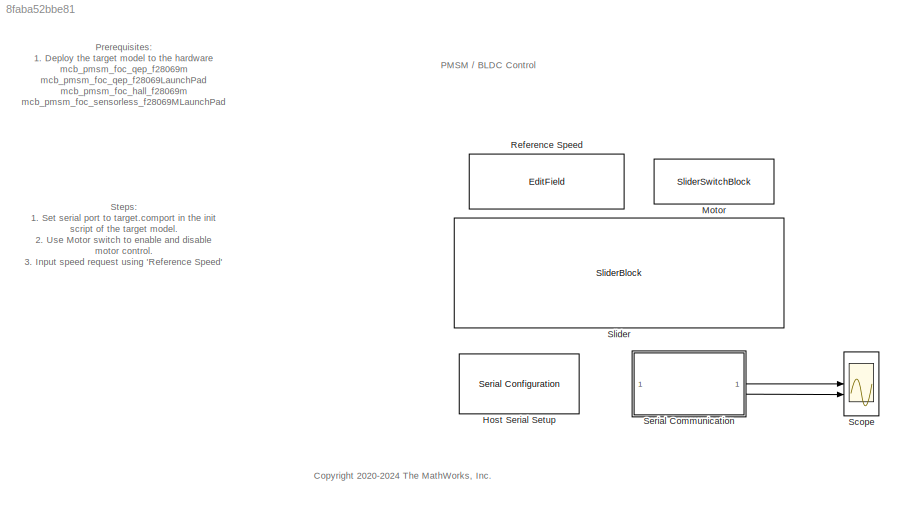
MODEL slx_8faba52bbe81
KIND model
CONFIG AbsTol = auto
CONFIG EnableMultiTasking = on
CONFIG FixedStep = auto
CONFIG MaxStep = auto
CONFIG MinStep = auto
CONFIG RelTol = 1e-3
CONFIG SampleTimeConstraint = Unconstrained
CONFIG SolverName = FixedStepDiscrete
CONFIG StartTime = 0.0
CONFIG StopTime = inf
BLOCK [Reference] Host Serial Setup  REF=instrumentseriallib/Serial Configuration
  LibrarySourceBlock = mcblib/Protection and Diagnostics/Host Serial Setup
  Priority = -99
  SourceBlock = instrumentseriallib/Serial Configuration
  SourceType = system.SerialConfiguration
BLOCK [SliderSwitchBlock] Motor
  LabelPosition = Hide
BLOCK [EditField] Reference Speed
  Alignment = Center
  LabelPosition = Hide
  ShowInitialText = on
BLOCK [Scope] Scope
  ActiveDisplayYMaximum = 6000
  ActiveDisplayYMinimum = -6000
  Floating = off
  FrameBasedProcessingString = Columns as channels (frame based)
  GraphicalSettings = {"GraphicalSettings":{"LegacySettings":true,"Style":{"AxesScalingProperties":{"ScaleAxesLimitsAtStop":false},"Style":{"AxesColor":"[0 0 0]","ColorOrder":"[1 1 0.0666666666666667;0.0745098039215686 0.623529411764706 1;1 0.411764705882353 0.16078431372549;0.392156862745098 0.831372549019608 0.0745098039215686;0.717647058823529 0.274509803921569 1;0.0588235294117647 1 1;1 0.0745098039215686 0.6509803...<+486ch>
  LayoutDimensionsString = [2 1]
  MultipleDisplayCache = [{"MaxYLimMag":1741.20557,"MaxYLimReal":6000,"MinYLimMag":0,"MinYLimReal":-6000,"PlotAsMagnitudePhase":false,"ShowGrid":true,"ShowLegend":true,"Title":"Speed","YLabel":"Speed (RPM)"},{"MaxYLimMag":1.29722,"MaxYLimReal":10,"MinYLimMag":0,"MinYLimReal":-10,"PlotAsMagnitudePhase":false,"ShowGrid":true,"ShowLegend":true,"Title":"Phase Current","YLabel":"Ia (amps)"}]
  NumInputPorts = 2
  OpenAtSimulationStart = on
  ShowLegend = on
  Title = Speed
  WasSavedAsWebScope = on
  WindowPosition = [901 209 437 718]
  YLabel = Speed (RPM)
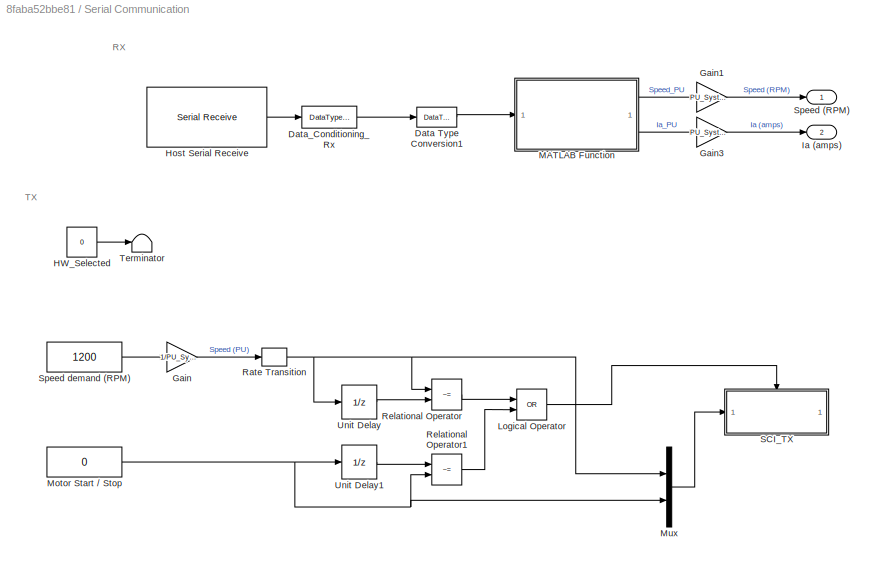
BLOCK [SubSystem] Serial Communication
BLOCK [DataTypeConversion] Serial Communication/Data Type Conversion1
  OutDataTypeStr = single
  RndMeth = Simplest
  SaturateOnIntegerOverflow = off
BLOCK [DataTypeConversion] Serial Communication/Data_Conditioning_Rx
  ConvertRealWorld = Stored Integer (SI)
  OutDataTypeStr = fixdt(1,16,12)
  RndMeth = Simplest
  SaturateOnIntegerOverflow = off
BLOCK [Gain] Serial Communication/Gain
  Gain = 1/PU_System.N_base
  OutDataTypeStr = Inherit: Same as input
  RndMeth = Simplest
BLOCK [Gain] Serial Communication/Gain1
  Gain = PU_System.N_base
  OutDataTypeStr = single
  RndMeth = Simplest
BLOCK [Gain] Serial Communication/Gain3
  Gain = PU_System.I_base
  OutDataTypeStr = single
  RndMeth = Simplest
BLOCK [Constant] Serial Communication/HW_Selected
  OutDataTypeStr = uint8
  Value = 0
BLOCK [Reference] Serial Communication/Host Serial Receive  REF=instrumentseriallib/Serial Receive
  LibrarySourceBlock = mcblib/Protection and Diagnostics/Host Serial Receive
  SourceBlock = instrumentseriallib/Serial Receive
  SourceType = system.SerialReceive
BLOCK [Outport] Serial Communication/Ia (amps)
  Port = 2
BLOCK [Logic] Serial Communication/Logical Operator
  AllPortsSameDT = off
  Operator = OR
  OutDataTypeStr = boolean
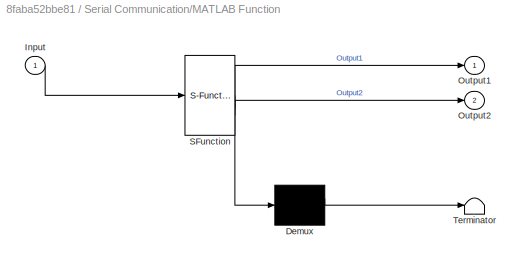
BLOCK [SubSystem] Serial Communication/MATLAB Function
  ErrorFcn = Stateflow.Translate.translate
  PermitHierarchicalResolution = ExplicitOnly
  SFBlockType = MATLAB Function
  TreatAsAtomicUnit = on
BLOCK [Demux] Serial Communication/MATLAB Function/ Demux 
  Outputs = 1
BLOCK [S-Function] Serial Communication/MATLAB Function/ SFunction 
  EnableBusSupport = off
  FunctionName = sf_sfun
  PortCounts = [1 3]
  SFcnIsStateOwnerBlock = off
  SFunctionDeploymentMode = off
  Tag = Stateflow S-Function 3
BLOCK [Terminator] Serial Communication/MATLAB Function/ Terminator 
BLOCK [Inport] Serial Communication/MATLAB Function/Input
BLOCK [Outport] Serial Communication/MATLAB Function/Output1
BLOCK [Outport] Serial Communication/MATLAB Function/Output2
  Port = 2
BLOCK [Constant] Serial Communication/Motor Start // Stop
  OutDataTypeStr = single
  SampleTime = 0.03
  Value = 0
  VectorParams1D = off
BLOCK [Mux] Serial Communication/Mux
  DisplayOption = bar
  Inputs = 2
BLOCK [RateTransition] Serial Communication/Rate Transition
  OutPortSampleTime = 0.03
BLOCK [RelationalOperator] Serial Communication/Relational Operator
  InputSameDT = off
  Operator = ~=
  OutDataTypeStr = boolean
BLOCK [RelationalOperator] Serial Communication/Relational Operator1
  InputSameDT = off
  Operator = ~=
  OutDataTypeStr = boolean
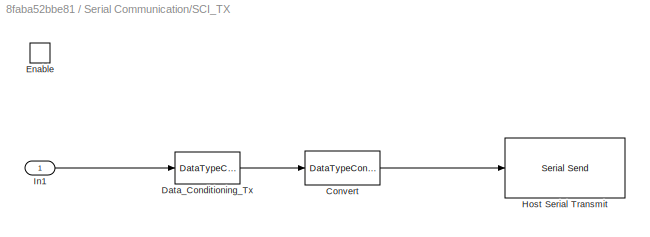
BLOCK [SubSystem] Serial Communication/SCI_TX
  TreatAsAtomicUnit = on
BLOCK [DataTypeConversion] Serial Communication/SCI_TX/Convert
  ConvertRealWorld = Stored Integer (SI)
  OutDataTypeStr = uint16
  RndMeth = Simplest
  SaturateOnIntegerOverflow = off
BLOCK [DataTypeConversion] Serial Communication/SCI_TX/Data_Conditioning_Tx
  OutDataTypeStr = fixdt(1,16,12)
  RndMeth = Simplest
  SaturateOnIntegerOverflow = off
BLOCK [EnablePort] Serial Communication/SCI_TX/Enable
BLOCK [Reference] Serial Communication/SCI_TX/Host Serial Transmit  REF=instrumentseriallib/Serial Send
  LibrarySourceBlock = mcblib/Protection and Diagnostics/Host Serial Transmit
  SourceBlock = instrumentseriallib/Serial Send
  SourceType = system.SerialSend
BLOCK [Inport] Serial Communication/SCI_TX/In1
BLOCK [Outport] Serial Communication/Speed (RPM)
BLOCK [Constant] Serial Communication/Speed demand (RPM)
  OutDataTypeStr = single
  SampleTime = 0.03
  Value = 1200
  VectorParams1D = off
BLOCK [Terminator] Serial Communication/Terminator
BLOCK [UnitDelay] Serial Communication/Unit Delay
  HasFrameUpgradeWarning = on
  InitialCondition = 0.5
  SampleTime = -1
BLOCK [UnitDelay] Serial Communication/Unit Delay1
  HasFrameUpgradeWarning = on
  SampleTime = -1
BLOCK [SliderBlock] Slider
  LabelPosition = Hide
  ScaleMax = 6000
  ScaleMin = -6000
ANNOTATION (root): PMSM / BLDC Control
ANNOTATION (root): <copyright redacted>
ANNOTATION (root): Prerequisites: 1. Deploy the target model to the hardware mcb_pmsm_foc_qep_f28069m mcb_pmsm_foc_qep_f28069LaunchPad mcb_pmsm_foc_hall_f28069m mcb_pmsm_foc_sensorless_f28069MLaunchPad mcb_bldc_sixstep_f28069mLaunchPad 2.The variables from the target model are loaded to the base workspace.
ANNOTATION (root): Steps: 1. Set serial port to target.comport in the init script of the target model. 2. Use Motor switch to enable and disable motor control. 3. Input speed request using 'Reference Speed' edit box or sliding bar. 4. Observe the actual speed of motor and phase A current in the scope. 5. Start the motor in open loop under no load condition and transition to close loop for Sensorless Example.
ANNOTATION Serial Communication: RX
ANNOTATION Serial Communication: TX
LINE Serial Communication/Data Type Conversion1:1 -> Serial Communication/MATLAB Function:1
LINE Serial Communication/Data_Conditioning_Rx:1 -> Serial Communication/Data Type Conversion1:1
LINE Serial Communication/Gain1:1 -> Serial Communication/Speed (RPM):1
LINE Serial Communication/Gain3:1 -> Serial Communication/Ia (amps):1
LINE Serial Communication/Gain:1 -> Serial Communication/Rate Transition:1
LINE Serial Communication/HW_Selected:1 -> Serial Communication/Terminator:1
LINE Serial Communication/Host Serial Receive:1 -> Serial Communication/Data_Conditioning_Rx:1
LINE Serial Communication/Logical Operator:1 -> Serial Communication/SCI_TX:enable
LINE Serial Communication/MATLAB Function:1 -> Serial Communication/Gain1:1
LINE Serial Communication/MATLAB Function:2 -> Serial Communication/Gain3:1
NET Serial Communication/Motor Start // Stop:1 -> Serial Communication/Mux:2, Serial Communication/Relational Operator1:2, Serial Communication/Unit Delay1:1
LINE Serial Communication/Mux:1 -> Serial Communication/SCI_TX:1
NET Serial Communication/Rate Transition:1 -> Serial Communication/Mux:1, Serial Communication/Relational Operator:1, Serial Communication/Unit Delay:1
LINE Serial Communication/Relational Operator1:1 -> Serial Communication/Logical Operator:2
LINE Serial Communication/Relational Operator:1 -> Serial Communication/Logical Operator:1
LINE Serial Communication/SCI_TX/Convert:1 -> Serial Communication/SCI_TX/Host Serial Transmit:1
LINE Serial Communication/SCI_TX/Data_Conditioning_Tx:1 -> Serial Communication/SCI_TX/Convert:1
LINE Serial Communication/SCI_TX/In1:1 -> Serial Communication/SCI_TX/Data_Conditioning_Tx:1
LINE Serial Communication/Speed demand (RPM):1 -> Serial Communication/Gain:1
LINE Serial Communication/Unit Delay1:1 -> Serial Communication/Relational Operator1:1
LINE Serial Communication/Unit Delay:1 -> Serial Communication/Relational Operator:2
LINE Serial Communication:1 -> Scope:1
LINE Serial Communication:2 -> Scope:2
note: NET lines group one-source signal fan-out (src -> all destinations, sorted); 1:1 wires keep LINE
CHART Serial Communication/MATLAB Function states=1 transitions=1
  STATE_LABEL 'eML_blk_kernel()'
  STATE_LABEL 'SCRIPT:\nfunction [ Output1, Output2] = unBuf(Input)\n\nOutput1 = Input(:, 1);\nOutput2 = Input(:, 2);\nend'
CHART  states=0 transitions=0
